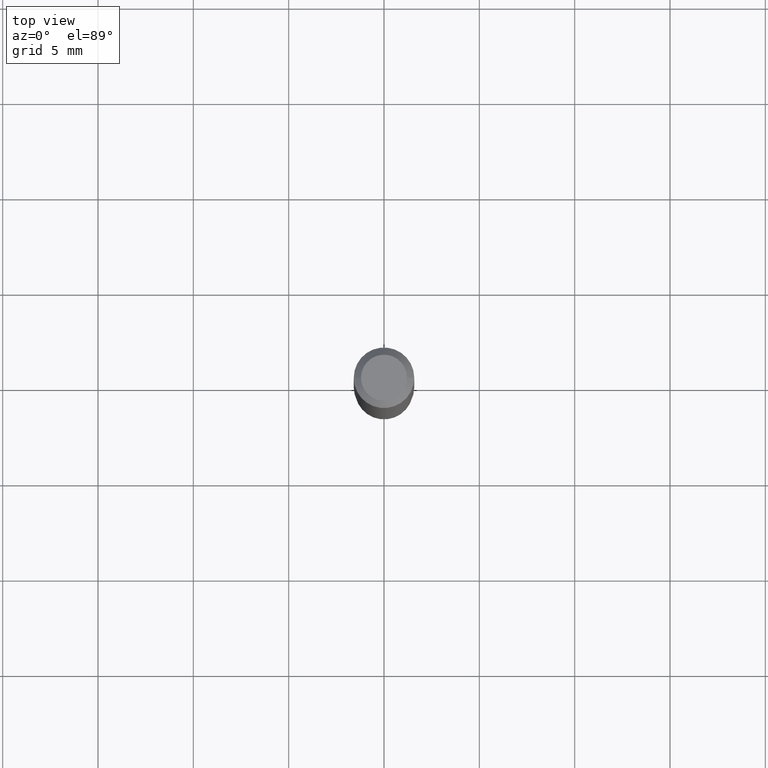
[diagram: clean part render]
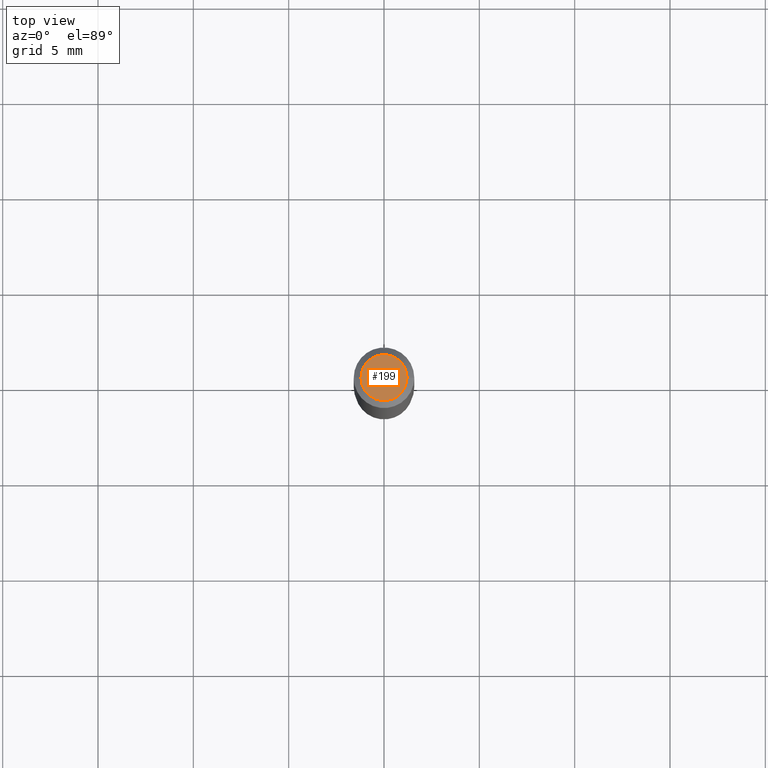
[diagram: same view with one face highlighted and labeled with its STEP entity id]
A machine part, top view. The second image highlights one B-rep face of the part: STEP entity #199.
In plain terms, the highlighted planar face has unit normal (0, -0, -1).
Its self-contained STEP definition (entity closure, byte-faithful):
#9 = CARTESIAN_POINT ( 'NONE',  ( -0.04749999999999999362, 3.578768372314206562E-16, -1.989643822619551895E-16 ) ) ;
#34 = DIRECTION ( 'NONE',  ( 2.438088387897960049E-29, -3.491481338843145188E-15, -1.000000000000000000 ) ) ;
#66 = DIRECTION ( 'NONE',  ( -2.445468806185136597E-29, 3.491481338843145583E-15, 1.000000000000000000 ) ) ;
#96 = AXIS2_PLACEMENT_3D ( 'NONE', #122, #414, #376 ) ;
#100 = CARTESIAN_POINT ( 'NONE',  ( 4.865611903635008365E-45, -6.946804277620623666E-31, -1.989643822619527736E-16 ) ) ;
#101 = CARTESIAN_POINT ( 'NONE',  ( 0.04749999999999999362, -4.035134999187581581E-16, -1.989643822619502098E-16 ) ) ;
#122 = CARTESIAN_POINT ( 'NONE',  ( 4.865611903635008365E-45, -6.946804277620623666E-31, -1.989643822619527736E-16 ) ) ;
#132 = EDGE_CURVE ( 'NONE', #256, #332, #337, .T. ) ;
#133 = AXIS2_PLACEMENT_3D ( 'NONE', #100, #66, #206 ) ;
#169 = DIRECTION ( 'NONE',  ( -1.000000000000000000, 6.982962677686265922E-15, -4.876176775795935793E-29 ) ) ;
#199 = ADVANCED_FACE ( 'NONE', ( #280 ), #388, .F. ) ;
#206 = DIRECTION ( 'NONE',  ( 1.000000000000000000, -6.982962677686267499E-15, 4.852736867747366768E-29 ) ) ;
#254 = ORIENTED_EDGE ( 'NONE', *, *, #132, .T. ) ;
#256 = VERTEX_POINT ( 'NONE', #9 ) ;
#280 = FACE_OUTER_BOUND ( 'NONE', #297, .T. ) ;
#297 = EDGE_LOOP ( 'NONE', ( #254, #341 ) ) ;
#332 = VERTEX_POINT ( 'NONE', #101 ) ;
#337 = CIRCLE ( 'NONE', #133, 0.04749999999999999362 ) ;
#341 = ORIENTED_EDGE ( 'NONE', *, *, #382, .T. ) ;
#345 = CIRCLE ( 'NONE', #96, 0.04749999999999999362 ) ;
#351 = CARTESIAN_POINT ( 'NONE',  ( 3.316907271900976096E-16, 0.04749999999999999362, -2.653275547260257586E-16 ) ) ;
#376 = DIRECTION ( 'NONE',  ( 1.000000000000000000, -6.982962677686267499E-15, 4.852736867747366768E-29 ) ) ;
#382 = EDGE_CURVE ( 'NONE', #332, #256, #345, .T. ) ;
#387 = AXIS2_PLACEMENT_3D ( 'NONE', #351, #34, #169 ) ;
#388 = PLANE ( 'NONE',  #387 ) ;
#414 = DIRECTION ( 'NONE',  ( -2.445468806185136597E-29, 3.491481338843145583E-15, 1.000000000000000000 ) ) ;